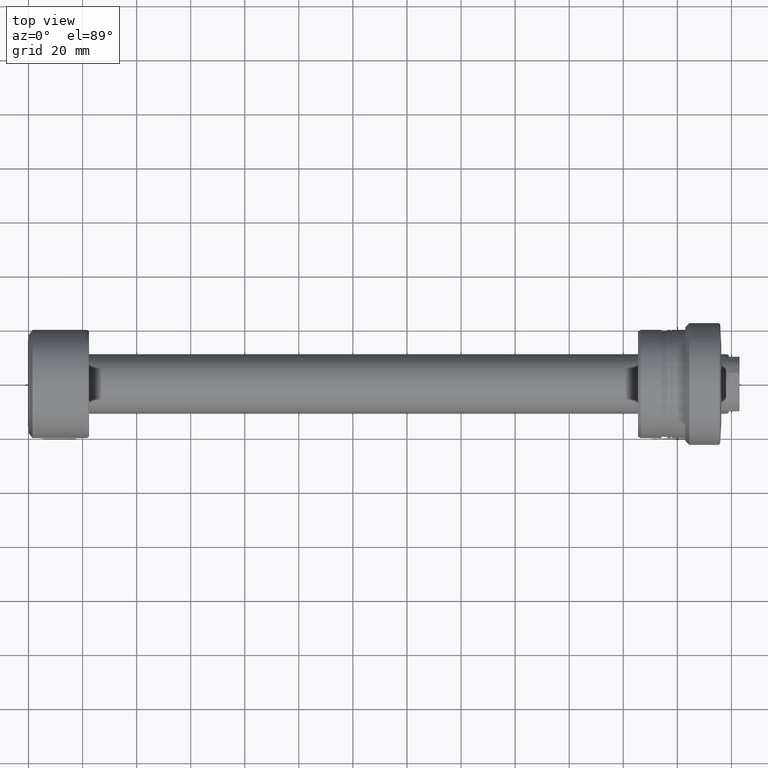
[diagram: clean part render]
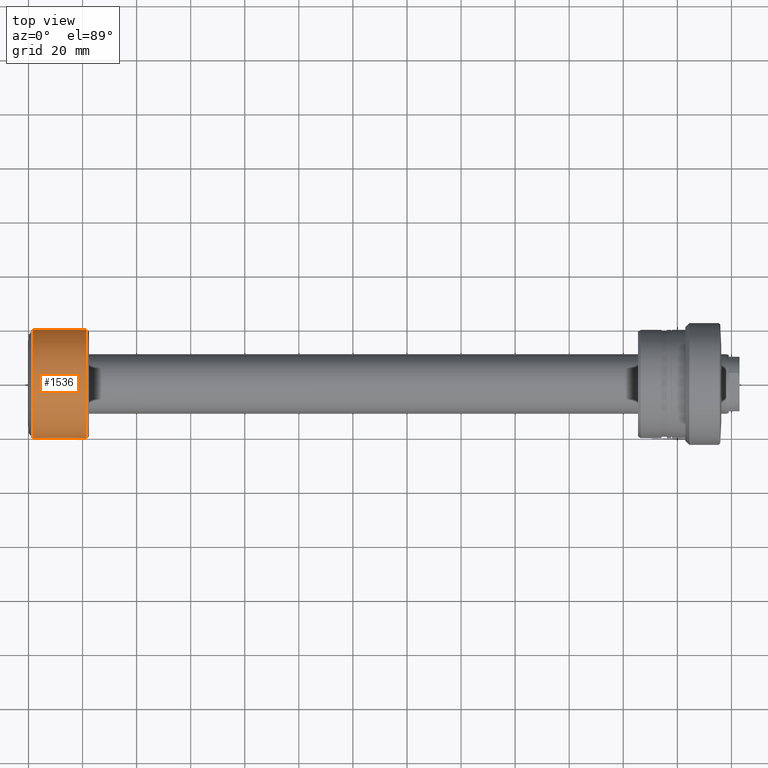
[diagram: same view with one face highlighted and labeled with its STEP entity id]
A machine part, top view. The second image highlights one B-rep face of the part: STEP entity #1536.
In plain terms, the highlighted cylindrical surface (partial cylindrical patch) has radius 20 mm, axis along (-1, -0, -0).
Its self-contained STEP definition (entity closure, byte-faithful):
#70 = EDGE_LOOP ( 'NONE', ( #2227, #1639, #2432, #296 ) ) ;
#76 = VERTEX_POINT ( 'NONE', #1518 ) ;
#80 = DIRECTION ( 'NONE',  ( -1.000000000000000000, -1.069542322069065801E-17, -0.000000000000000000 ) ) ;
#94 = CIRCLE ( 'NONE', #2311, 20.00000000000000000 ) ;
#184 = CARTESIAN_POINT ( 'NONE',  ( 2.139084644138131786E-16, -20.00000000000000000, 0.000000000000000000 ) ) ;
#296 = ORIENTED_EDGE ( 'NONE', *, *, #705, .F. ) ;
#336 = CARTESIAN_POINT ( 'NONE',  ( -2.139084644138131786E-16, 20.00000000000000000, 2.449293598294706513E-15 ) ) ;
#346 = LINE ( 'NONE', #336, #952 ) ;
#360 = DIRECTION ( 'NONE',  ( 1.084202172485504434E-17, -1.000000000000000000, 0.000000000000000000 ) ) ;
#378 = CARTESIAN_POINT ( 'NONE',  ( 21.40000000000000924, 20.00000000000000000, 2.449293598294706513E-15 ) ) ;
#616 = VERTEX_POINT ( 'NONE', #378 ) ;
#673 = CARTESIAN_POINT ( 'NONE',  ( 0.000000000000000000, 0.000000000000000000, 0.000000000000000000 ) ) ;
#705 = EDGE_CURVE ( 'NONE', #76, #2392, #1549, .T. ) ;
#736 = CARTESIAN_POINT ( 'NONE',  ( 1.500000000000002442, 20.00000000000000000, 0.000000000000000000 ) ) ;
#786 = DIRECTION ( 'NONE',  ( 0.000000000000000000, -1.000000000000000000, 0.000000000000000000 ) ) ;
#838 = DIRECTION ( 'NONE',  ( -1.000000000000000000, -1.069542322069065801E-17, -0.000000000000000000 ) ) ;
#952 = VECTOR ( 'NONE', #1310, 1000.000000000000000 ) ;
#1188 = VECTOR ( 'NONE', #2108, 1000.000000000000000 ) ;
#1214 = DIRECTION ( 'NONE',  ( 1.069542322069065955E-17, -1.000000000000000000, 0.000000000000000000 ) ) ;
#1280 = AXIS2_PLACEMENT_3D ( 'NONE', #2165, #80, #786 ) ;
#1310 = DIRECTION ( 'NONE',  ( -1.000000000000000000, -1.069542322069065801E-17, -0.000000000000000000 ) ) ;
#1518 = CARTESIAN_POINT ( 'NONE',  ( 21.40000000000000924, -20.00000000000000000, 0.000000000000000000 ) ) ;
#1536 = ADVANCED_FACE ( 'NONE', ( #2006 ), #2369, .T. ) ;
#1549 = LINE ( 'NONE', #184, #1188 ) ;
#1639 = ORIENTED_EDGE ( 'NONE', *, *, #1749, .T. ) ;
#1655 = VERTEX_POINT ( 'NONE', #736 ) ;
#1717 = EDGE_CURVE ( 'NONE', #2392, #1655, #94, .T. ) ;
#1749 = EDGE_CURVE ( 'NONE', #616, #1655, #346, .T. ) ;
#1791 = EDGE_CURVE ( 'NONE', #76, #616, #2382, .T. ) ;
#1874 = AXIS2_PLACEMENT_3D ( 'NONE', #673, #838, #1214 ) ;
#2006 = FACE_OUTER_BOUND ( 'NONE', #70, .T. ) ;
#2034 = CARTESIAN_POINT ( 'NONE',  ( 1.500000000000002442, 1.604313483103601552E-17, 0.000000000000000000 ) ) ;
#2052 = DIRECTION ( 'NONE',  ( -1.000000000000000000, -1.069542322069065801E-17, -0.000000000000000000 ) ) ;
#2107 = CARTESIAN_POINT ( 'NONE',  ( 1.500000000000002887, -20.00000000000000000, 2.449293598294706513E-15 ) ) ;
#2108 = DIRECTION ( 'NONE',  ( -1.000000000000000000, -1.069542322069065801E-17, -0.000000000000000000 ) ) ;
#2165 = CARTESIAN_POINT ( 'NONE',  ( 21.40000000000000924, 2.288820569227802283E-16, 0.000000000000000000 ) ) ;
#2227 = ORIENTED_EDGE ( 'NONE', *, *, #1791, .T. ) ;
#2311 = AXIS2_PLACEMENT_3D ( 'NONE', #2034, #2052, #360 ) ;
#2369 = CYLINDRICAL_SURFACE ( 'NONE', #1874, 20.00000000000000000 ) ;
#2382 = CIRCLE ( 'NONE', #1280, 20.00000000000000000 ) ;
#2392 = VERTEX_POINT ( 'NONE', #2107 ) ;
#2432 = ORIENTED_EDGE ( 'NONE', *, *, #1717, .F. ) ;